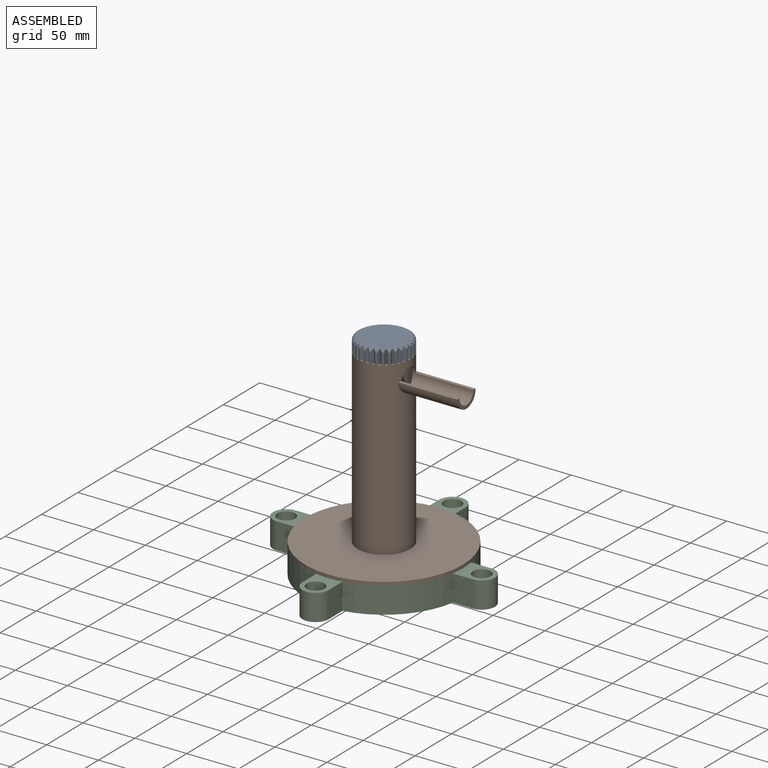
[diagram: assembled view]
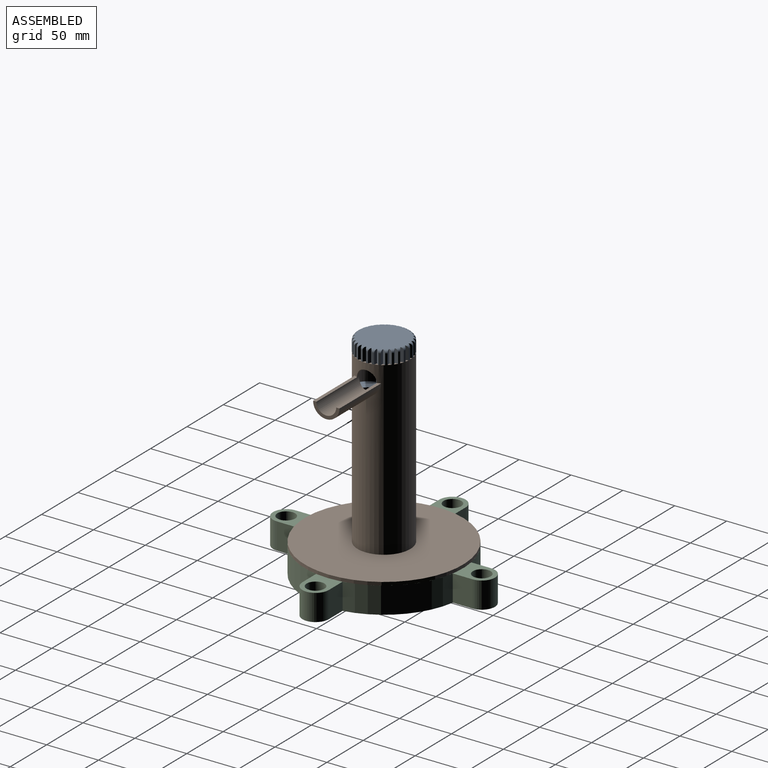
[diagram: assembled view, second angle]
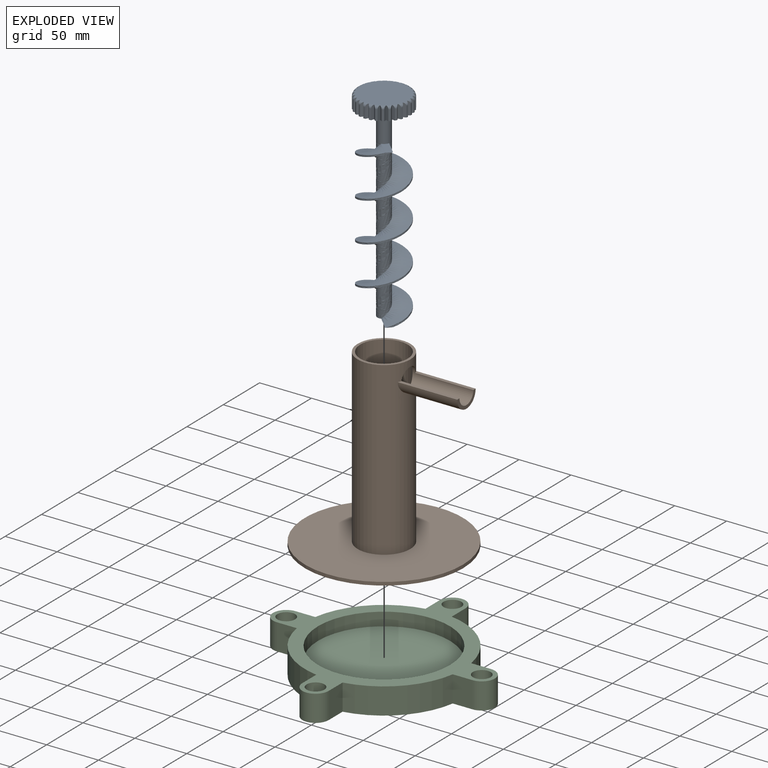
[diagram: exploded view]
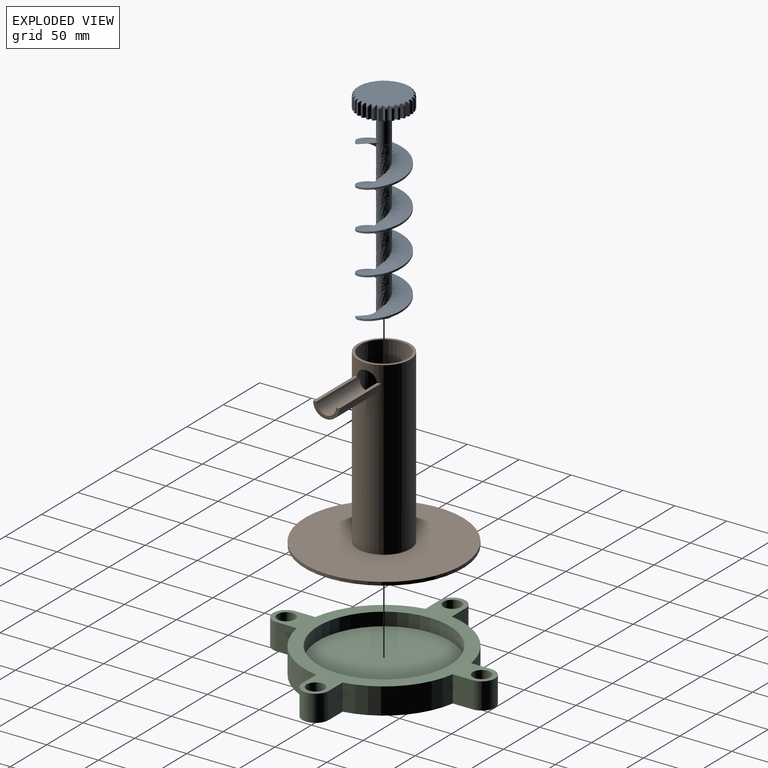
[diagram: exploded view, second angle]
ASSEMBLY  parts=3 mates=2
PART A: 129 faces, bbox 51.1x51.1x193.7 mm
  f0: torus R=22.86mm, axis (0,0,1), area 11.8mm2, adj f1,f2,f124,f128
  f1: cylinder r=25.4mm len=10.16mm, axis (0,0,-1), area 19.6mm2, adj f0,f2,f125,f128
  f2: plane 12.7x2.78mm, normal (0.92,0.38,0), area 36.6mm2, adj f0,f1,f3,f125
  f3: plane 12.7x2.18mm, normal (-0.69,0.72,0), area 36.6mm2, adj f2,f4,f5,f125
  f4: torus R=22.86mm, axis (0,0,1), area 11.8mm2, adj f3,f5,f6,f124
  f5: cylinder r=25.4mm len=10.16mm, axis (0,0,-1), area 19.6mm2, adj f3,f4,f6,f125
  f6: plane 12.7x2.96mm, normal (0.98,0.18,0), area 36.6mm2, adj f4,f5,f7,f125
  f7: plane 12.7x2.56mm, normal (-0.52,0.85,0), area 36.6mm2, adj f6,f8,f9,f125
  f8: torus R=22.86mm, axis (0,0,1), area 11.8mm2, adj f7,f9,f10,f124
  f9: cylinder r=25.4mm len=10.16mm, axis (0,0,-1), area 19.6mm2, adj f7,f8,f10,f125
  f10: plane 12.7x3.01mm, normal (1,-0.03,0), area 36.6mm2, adj f8,f9,f11,f125
  f11: plane 12.7x2.83mm, normal (-0.34,0.94,0), area 36.6mm2, adj f10,f12,f13,f125
  f12: torus R=22.86mm, axis (0,0,1), area 11.8mm2, adj f11,f13,f14,f124
  f13: cylinder r=25.4mm len=10.16mm, axis (0,0,-1), area 19.6mm2, adj f11,f12,f14,f125
  f14: plane 12.7x2.92mm, normal (0.97,-0.24,0), area 36.6mm2, adj f12,f13,f15,f125
  f15: plane 12.7x2.98mm, normal (-0.13,0.99,0), area 36.6mm2, adj f14,f16,f17,f125
  f16: torus R=22.86mm, axis (0,0,1), area 11.8mm2, adj f15,f17,f18,f124
  f17: cylinder r=25.4mm len=10.16mm, axis (0,0,-1), area 19.6mm2, adj f15,f16,f18,f125
  f18: plane 12.7x2.71mm, normal (0.9,-0.43,0), area 36.6mm2, adj f16,f17,f19,f125
  f19: plane 12.7x3mm, normal (0.08,1,0), area 36.6mm2, adj f18,f20,f21,f125
  f20: torus R=22.86mm, axis (0,0,1), area 11.8mm2, adj f19,f21,f22,f124
  f21: cylinder r=25.4mm len=10.16mm, axis (0,0,-1), area 19.6mm2, adj f19,f20,f22,f125
  f22: plane 12.7x2.38mm, normal (0.79,-0.61,0), area 36.6mm2, adj f20,f21,f23,f125
  f23: plane 12.7x2.89mm, normal (0.28,0.96,0), area 36.6mm2, adj f22,f24,f25,f125
  f24: torus R=22.86mm, axis (0,0,1), area 11.8mm2, adj f23,f25,f26,f124
  f25: cylinder r=25.4mm len=10.16mm, axis (0,0,-1), area 19.6mm2, adj f23,f24,f26,f125
  f26: plane 12.7x2.29mm, normal (0.65,-0.76,0), area 36.6mm2, adj f24,f25,f27,f125
  f27: plane 12.7x2.65mm, normal (0.47,0.88,0), area 36.6mm2, adj f26,f28,f29,f125
  f28: torus R=22.86mm, axis (0,0,1), area 11.8mm2, adj f27,f29,f30,f124
  f29: cylinder r=25.4mm len=10.16mm, axis (0,0,-1), area 19.6mm2, adj f27,f28,f30,f125
  f30: plane 12.7x2.65mm, normal (0.47,-0.88,0), area 36.6mm2, adj f28,f29,f31,f125
  f31: plane 12.7x2.29mm, normal (0.65,0.76,0), area 36.6mm2, adj f30,f32,f33,f125
  f32: torus R=22.86mm, axis (0,0,1), area 11.8mm2, adj f31,f33,f34,f124
  f33: cylinder r=25.4mm len=10.16mm, axis (0,0,-1), area 19.6mm2, adj f31,f32,f34,f125
  f34: plane 12.7x2.89mm, normal (0.28,-0.96,0), area 36.6mm2, adj f32,f33,f35,f125
  f35: plane 12.7x2.38mm, normal (0.79,0.61,0), area 36.6mm2, adj f34,f36,f37,f125
  f36: torus R=22.86mm, axis (0,0,1), area 11.8mm2, adj f35,f37,f38,f124
  f37: cylinder r=25.4mm len=10.16mm, axis (0,0,-1), area 19.6mm2, adj f35,f36,f38,f125
  f38: plane 12.7x3mm, normal (0.08,-1,0), area 36.6mm2, adj f36,f37,f39,f125
  f39: plane 12.7x2.71mm, normal (0.9,0.43,0), area 36.6mm2, adj f38,f40,f41,f125
  f40: torus R=22.86mm, axis (0,0,1), area 11.8mm2, adj f39,f41,f42,f124
  f41: cylinder r=25.4mm len=10.16mm, axis (0,0,-1), area 19.6mm2, adj f39,f40,f42,f125
  f42: plane 12.7x2.98mm, normal (-0.13,-0.99,0), area 36.6mm2, adj f40,f41,f43,f125
  f43: plane 12.7x2.92mm, normal (0.97,0.24,0), area 36.6mm2, adj f42,f44,f45,f125
  f44: torus R=22.86mm, axis (0,0,1), area 11.8mm2, adj f43,f45,f46,f124
  f45: cylinder r=25.4mm len=10.16mm, axis (0,0,-1), area 19.6mm2, adj f43,f44,f46,f125
  f46: plane 12.7x2.83mm, normal (-0.34,-0.94,0), area 36.6mm2, adj f44,f45,f47,f125
  f47: plane 12.7x3.01mm, normal (1,0.03,0), area 36.6mm2, adj f46,f48,f49,f125
  f48: torus R=22.86mm, axis (0,0,1), area 11.8mm2, adj f47,f49,f50,f124
  f49: cylinder r=25.4mm len=10.16mm, axis (0,0,-1), area 19.6mm2, adj f47,f48,f50,f125
  f50: plane 12.7x2.56mm, normal (-0.52,-0.85,0), area 36.6mm2, adj f48,f49,f51,f125
  f51: plane 12.7x2.96mm, normal (0.98,-0.18,0), area 36.6mm2, adj f50,f52,f53,f125
  f52: torus R=22.86mm, axis (0,0,1), area 11.8mm2, adj f51,f53,f54,f124
  f53: cylinder r=25.4mm len=10.16mm, axis (0,0,-1), area 19.6mm2, adj f51,f52,f54,f125
  f54: plane 12.7x2.18mm, normal (-0.69,-0.72,0), area 36.6mm2, adj f52,f53,f55,f125
  f55: plane 12.7x2.78mm, normal (0.92,-0.38,0), area 36.6mm2, adj f54,f56,f57,f125
  f56: torus R=22.86mm, axis (0,0,1), area 11.8mm2, adj f55,f57,f58,f124
  f57: cylinder r=25.4mm len=10.16mm, axis (0,0,-1), area 19.6mm2, adj f55,f56,f58,f125
  f58: plane 12.7x2.48mm, normal (-0.83,-0.56,0), area 36.6mm2, adj f56,f57,f59,f125
  f59: plane 12.7x2.48mm, normal (0.83,-0.56,0), area 36.6mm2, adj f58,f60,f61,f125
  f60: torus R=22.86mm, axis (0,0,1), area 11.8mm2, adj f59,f61,f62,f124
  f61: cylinder r=25.4mm len=10.16mm, axis (0,0,-1), area 19.6mm2, adj f59,f60,f62,f125
  f62: plane 12.7x2.78mm, normal (-0.92,-0.38,0), area 36.6mm2, adj f60,f61,f63,f125
  f63: plane 12.7x2.18mm, normal (0.69,-0.72,0), area 36.6mm2, adj f62,f64,f65,f125
  f64: torus R=22.86mm, axis (0,0,1), area 11.8mm2, adj f63,f65,f66,f124
  f65: cylinder r=25.4mm len=10.16mm, axis (0,0,-1), area 19.6mm2, adj f63,f64,f66,f125
  f66: plane 12.7x2.96mm, normal (-0.98,-0.18,0), area 36.6mm2, adj f64,f65,f67,f125
  f67: plane 12.7x2.56mm, normal (0.52,-0.85,0), area 36.6mm2, adj f66,f68,f69,f125
  f68: torus R=22.86mm, axis (0,0,1), area 11.8mm2, adj f67,f69,f70,f124
  f69: cylinder r=25.4mm len=10.16mm, axis (0,0,-1), area 19.6mm2, adj f67,f68,f70,f125
  f70: plane 12.7x3.01mm, normal (-1,0.03,0), area 36.6mm2, adj f68,f69,f71,f125
  f71: plane 12.7x2.83mm, normal (0.34,-0.94,0), area 36.6mm2, adj f70,f72,f73,f125
  f72: torus R=22.86mm, axis (0,0,1), area 11.8mm2, adj f71,f73,f74,f124
  f73: cylinder r=25.4mm len=10.16mm, axis (0,0,-1), area 19.6mm2, adj f71,f72,f74,f125
  f74: plane 12.7x2.92mm, normal (-0.97,0.24,0), area 36.6mm2, adj f72,f73,f75,f125
  f75: plane 12.7x2.98mm, normal (0.13,-0.99,0), area 36.6mm2, adj f74,f76,f77,f125
  f76: torus R=22.86mm, axis (0,0,1), area 11.8mm2, adj f75,f77,f78,f124
  f77: cylinder r=25.4mm len=10.16mm, axis (0,0,-1), area 19.6mm2, adj f75,f76,f78,f125
  f78: plane 12.7x2.71mm, normal (-0.9,0.43,0), area 36.6mm2, adj f76,f77,f79,f125
  f79: plane 12.7x3mm, normal (-0.08,-1,0), area 36.6mm2, adj f78,f80,f81,f125
  f80: torus R=22.86mm, axis (0,0,1), area 11.8mm2, adj f79,f81,f82,f124
  f81: cylinder r=25.4mm len=10.16mm, axis (0,0,-1), area 19.6mm2, adj f79,f80,f82,f125
  f82: plane 12.7x2.38mm, normal (-0.79,0.61,0), area 36.6mm2, adj f80,f81,f83,f125
  f83: plane 12.7x2.89mm, normal (-0.28,-0.96,0), area 36.6mm2, adj f82,f84,f85,f125
  f84: torus R=22.86mm, axis (0,0,1), area 11.8mm2, adj f83,f85,f86,f124
  f85: cylinder r=25.4mm len=10.16mm, axis (0,0,-1), area 19.6mm2, adj f83,f84,f86,f125
  f86: plane 12.7x2.29mm, normal (-0.65,0.76,0), area 36.6mm2, adj f84,f85,f87,f125
  f87: plane 12.7x2.65mm, normal (-0.47,-0.88,0), area 36.6mm2, adj f86,f88,f89,f125
  f88: torus R=22.86mm, axis (0,0,1), area 11.8mm2, adj f87,f89,f90,f124
  f89: cylinder r=25.4mm len=10.16mm, axis (0,0,-1), area 19.6mm2, adj f87,f88,f90,f125
  f90: plane 12.7x2.65mm, normal (-0.47,0.88,0), area 36.6mm2, adj f88,f89,f91,f125
  f91: plane 12.7x2.29mm, normal (-0.65,-0.76,0), area 36.6mm2, adj f90,f92,f93,f125
  f92: torus R=22.86mm, axis (0,0,1), area 11.8mm2, adj f91,f93,f94,f124
  f93: cylinder r=25.4mm len=10.16mm, axis (0,0,-1), area 19.6mm2, adj f91,f92,f94,f125
  f94: plane 12.7x2.89mm, normal (-0.28,0.96,0), area 36.6mm2, adj f92,f93,f95,f125
  f95: plane 12.7x2.38mm, normal (-0.79,-0.61,0), area 36.6mm2, adj f94,f96,f97,f125
  f96: torus R=22.86mm, axis (0,0,1), area 11.8mm2, adj f95,f97,f98,f124
  f97: cylinder r=25.4mm len=10.16mm, axis (0,0,-1), area 19.6mm2, adj f95,f96,f98,f125
  f98: plane 12.7x3mm, normal (-0.08,1,0), area 36.6mm2, adj f96,f97,f99,f125
  f99: plane 12.7x2.71mm, normal (-0.9,-0.43,0), area 36.6mm2, adj f98,f100,f101,f125
  f100: torus R=22.86mm, axis (0,0,1), area 11.8mm2, adj f99,f101,f102,f124
  f101: cylinder r=25.4mm len=10.16mm, axis (0,0,-1), area 19.6mm2, adj f99,f100,f102,f125
  f102: plane 12.7x2.98mm, normal (0.13,0.99,0), area 36.6mm2, adj f100,f101,f103,f125
  f103: plane 12.7x2.92mm, normal (-0.97,-0.24,0), area 36.6mm2, adj f102,f104,f105,f125
  f104: torus R=22.86mm, axis (0,0,1), area 11.8mm2, adj f103,f105,f106,f124
  f105: cylinder r=25.4mm len=10.16mm, axis (0,0,-1), area 19.6mm2, adj f103,f104,f106,f125
  f106: plane 12.7x2.83mm, normal (0.34,0.94,0), area 36.6mm2, adj f104,f105,f107,f125
  f107: plane 12.7x3.01mm, normal (-1,-0.03,0), area 36.6mm2, adj f106,f108,f109,f125
  f108: torus R=22.86mm, axis (0,0,1), area 11.8mm2, adj f107,f109,f110,f124
  f109: cylinder r=25.4mm len=10.16mm, axis (0,0,-1), area 19.6mm2, adj f107,f108,f110,f125
  f110: plane 12.7x2.56mm, normal (0.52,0.85,0), area 36.6mm2, adj f108,f109,f111,f125
  f111: plane 12.7x2.96mm, normal (-0.98,0.18,0), area 36.6mm2, adj f110,f112,f113,f125
  f112: torus R=22.86mm, axis (0,0,1), area 11.8mm2, adj f111,f113,f114,f124
  f113: cylinder r=25.4mm len=10.16mm, axis (0,0,-1), area 19.6mm2, adj f111,f112,f114,f125
  f114: plane 12.7x2.18mm, normal (0.69,0.72,0), area 36.6mm2, adj f112,f113,f115,f125
  f115: plane 12.7x2.78mm, normal (-0.92,0.38,0), area 36.6mm2, adj f114,f123,f125,f126
  f116: plane 29.21x12.7mm, normal (0,0,-1), area 232.8mm2, adj f118,f119,f120,f121
  f117: plane 17.36x6.35mm, normal (0,0,1), area 106.1mm2, adj f119,f120,f121,f122
  f118: bspline ~152.4x21.13mm, area 5078.7mm2, adj f116,f119,f121,f122
  f119: bspline ~152.4x46.98mm, area 6670.1mm2, adj f116,f117,f118,f120
  f120: bspline ~152.4x46.98mm, area 973.3mm2, adj f116,f117,f119,f121
  f121: bspline ~152.4x46.98mm, area 6670.1mm2, adj f116,f117,f118,f120
  f122: cylinder r=6.35mm len=28.58mm, axis (0,0,-1), area 1140.1mm2, adj f117,f118,f125
  f123: cylinder r=25.4mm len=10.16mm, axis (0,0,-1), area 19.6mm2, adj f115,f125,f126,f127
  f124: plane 45.72x45.72mm, normal (0,0,1), area 1641.7mm2, adj f0,f4,f8,f12,f16,f20,f24,f28
  f125: plane 50.8x50.69mm, normal (0,0,-1), area 1769.9mm2, adj f1,f2,f3,f5,f6,f7,f9,f10
  f126: torus R=22.86mm, axis (0,0,1), area 11.8mm2, adj f115,f123,f124,f127
  f127: plane 12.7x2.48mm, normal (0.83,0.56,0), area 36.6mm2, adj f123,f125,f126,f128
  f128: plane 12.7x2.48mm, normal (-0.83,0.56,0), area 36.6mm2, adj f0,f1,f125,f127
PART B: 11 faces, bbox 155.6x152.4x168.3 mm
  f0: cylinder r=25.4mm len=165.1mm, axis (0,0,-1), area 25941.5mm2, adj f1,f4,f6,f8,f9,f10
  f1: plane 50.8x50.8mm, normal (0,0,1), area 385.1mm2, adj f0,f2
  f2: cylinder r=22.86mm len=168.28mm, axis (0,0,-1), area 23878.7mm2, adj f1,f3,f4
  f3: plane 152.4x152.4mm, normal (0,0,-1), area 16599.7mm2, adj f2,f5
  f4: cylinder r=9.53mm len=58.59mm, axis (1,0,0), area 1801.1mm2, adj f0,f2,f7,f8,f9
  f5: cylinder r=76.2mm len=152.4mm, axis (0,0,-1), area 1520.1mm2, adj f3,f6
  f6: plane 152.4x152.4mm, normal (0,0,1), area 16214.6mm2, adj f0,f5
  f7: plane 25.4x12.7mm, normal (1,0,0), area 110.8mm2, adj f4,f8,f9,f10
  f8: plane 57.38x3.18mm, normal (0,0,1), area 179.6mm2, adj f0,f4,f7,f10
  f9: plane 57.38x3.18mm, normal (0,0,1), area 179.6mm2, adj f0,f4,f7,f10
  f10: cylinder r=12.7mm len=57.38mm, axis (-1,0,0), area 2220.2mm2, adj f0,f7,f8,f9
PART C: 28 faces, bbox 213.8x213.8x25.4 mm
  f0: cylinder r=76.2mm len=62.43mm, axis (0,0,-1), area 2392.1mm2, adj f4,f5,f21,f23
  f1: cylinder r=76.2mm len=62.43mm, axis (0,0,-1), area 2392.1mm2, adj f4,f5,f16,f18
  f2: cylinder r=76.2mm len=62.43mm, axis (0,0,-1), area 2392.1mm2, adj f4,f5,f11,f13
  f3: cylinder r=76.2mm len=62.43mm, axis (0,0,-1), area 2392.1mm2, adj f4,f5,f8,f26
  f4: plane 213.77x213.77mm, normal (0,0,1), area 7526.9mm2, adj f0,f1,f2,f3,f6,f8,f9,f10
  f5: plane 213.77x213.77mm, normal (0,0,-1), area 21118.1mm2, adj f0,f1,f2,f3,f8,f10,f11,f13
  f6: cylinder r=63.5mm len=127mm, axis (0,0,-1), area 5067.1mm2, adj f4,f7
  f7: plane 127x127mm, normal (0,0,1), area 12667.7mm2, adj f6
  f8: plane 25.4x19.05mm, normal (1,0,0), area 483.9mm2, adj f3,f4,f5,f10
  f9: cylinder r=8.57mm len=19.05mm, axis (0,0,-1), area 1026.1mm2, adj f4,f12
  f10: cylinder r=12.7mm len=25.4mm, axis (0,0,-1), area 1013.4mm2, adj f4,f5,f8,f11
  f11: plane 25.4x19.05mm, normal (-1,0,0), area 483.9mm2, adj f2,f4,f5,f10
  f12: plane 17.15x17.15mm, normal (0,0,1), area 230.9mm2, adj f9
  f13: plane 25.4x19.05mm, normal (0,1,0), area 483.9mm2, adj f2,f4,f5,f15
  f14: cylinder r=8.57mm len=19.05mm, axis (0,0,-1), area 1026.1mm2, adj f4,f17
  f15: cylinder r=12.7mm len=25.4mm, axis (0,0,-1), area 1013.4mm2, adj f4,f5,f13,f16
  f16: plane 25.4x19.05mm, normal (0,-1,0), area 483.9mm2, adj f1,f4,f5,f15
  f17: plane 17.15x17.15mm, normal (0,0,1), area 230.9mm2, adj f14
  f18: plane 25.4x19.05mm, normal (-1,0,0), area 483.9mm2, adj f1,f4,f5,f20
  f19: cylinder r=8.57mm len=19.05mm, axis (0,0,-1), area 1026.1mm2, adj f4,f22
  f20: cylinder r=12.7mm len=25.4mm, axis (0,0,-1), area 1013.4mm2, adj f4,f5,f18,f21
  f21: plane 25.4x19.05mm, normal (1,0,0), area 483.9mm2, adj f0,f4,f5,f20
  f22: plane 17.15x17.15mm, normal (0,0,1), area 230.9mm2, adj f19
  f23: plane 25.4x19.05mm, normal (0,-1,0), area 483.9mm2, adj f0,f4,f5,f25
  f24: cylinder r=8.57mm len=19.05mm, axis (0,0,-1), area 1026.1mm2, adj f4,f27
  f25: cylinder r=12.7mm len=25.4mm, axis (0,0,-1), area 1013.4mm2, adj f4,f5,f23,f26
  f26: plane 25.4x19.05mm, normal (0,1,0), area 483.9mm2, adj f3,f4,f5,f25
  f27: plane 17.15x17.15mm, normal (0,0,1), area 230.9mm2, adj f24
PLACE A rot(axis=(0,0,-1),44.9deg) t=(0,0,0)mm
PLACE B at identity fixed
PLACE C at identity
MATE fastened C.f0 <-> B.f5  axis (0,0,-1) through (0,0,25.4)mm
MATE revolute A.f0 <-> B.f2  axis (0,0,-1) through (0,0,193.68)mm
